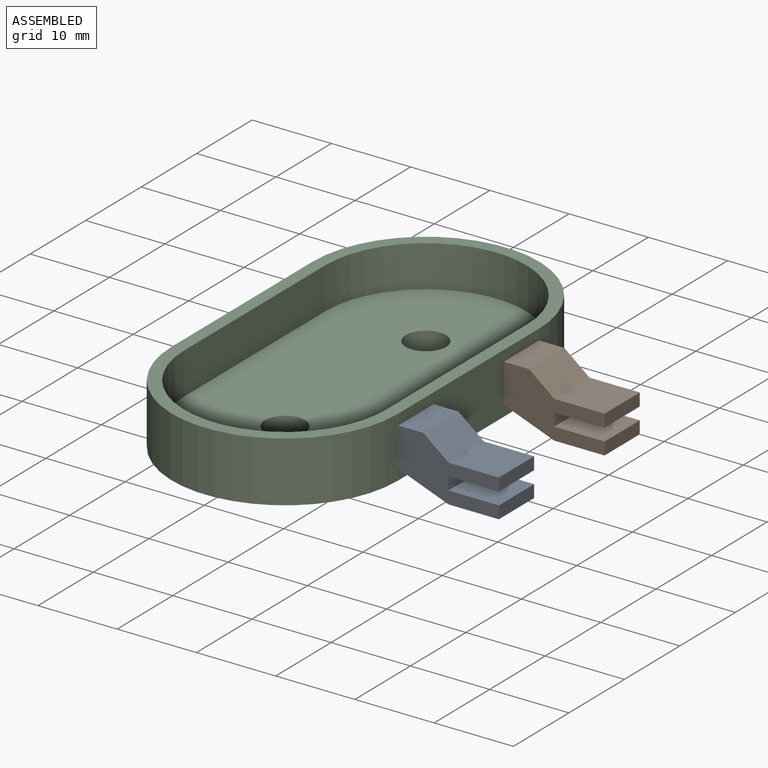
[diagram: assembled view]
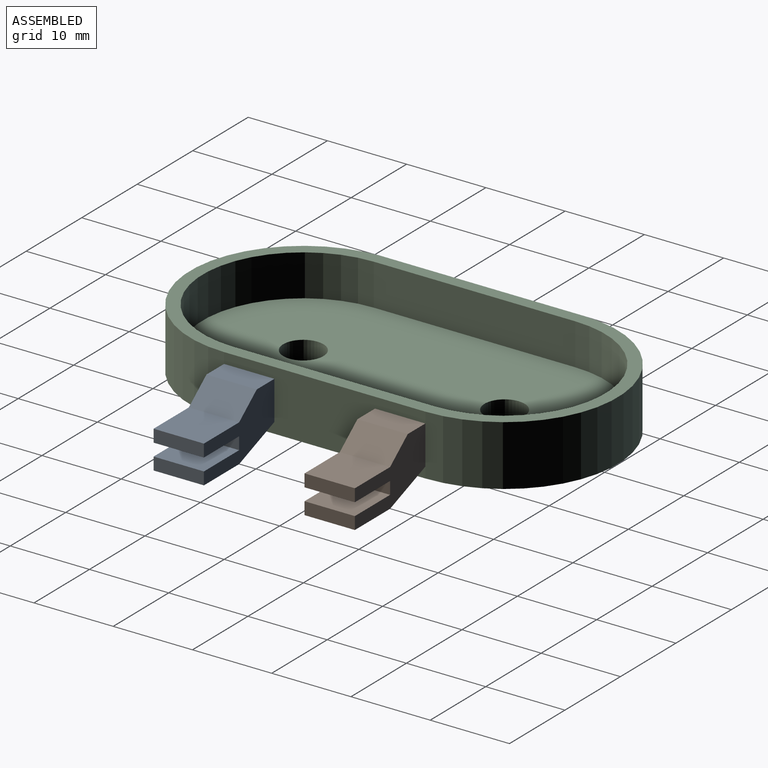
[diagram: assembled view, second angle]
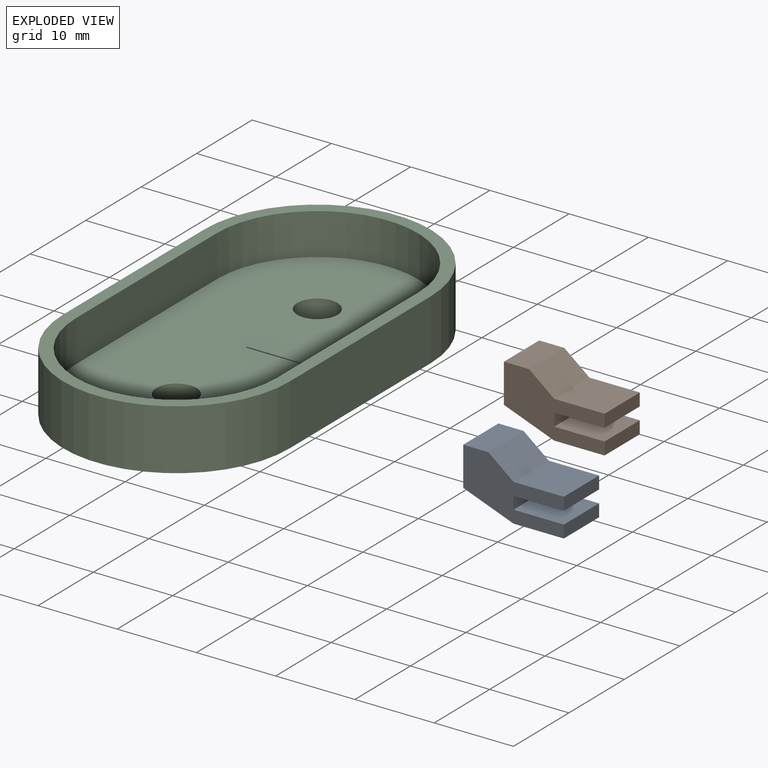
[diagram: exploded view]
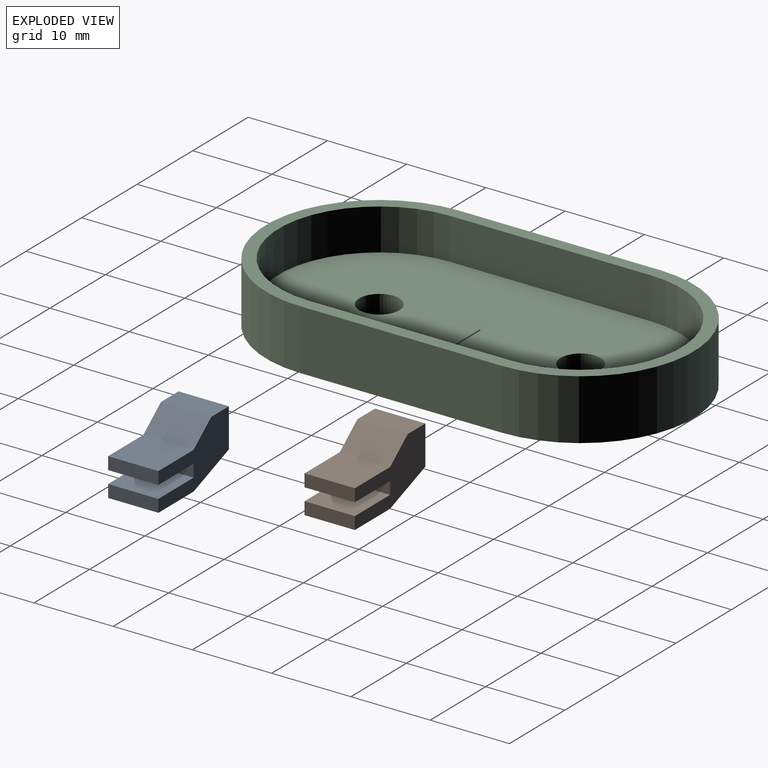
[diagram: exploded view, second angle]
ASSEMBLY  parts=3 mates=2
PART A: 13 faces, bbox 12.7x7.3x6.4 mm
  f0: plane 6.35x6.35mm, normal (0,1,0), area 40.3mm2, adj f1,f10,f11,f12
  f1: plane 6.35x1.59mm, normal (-1,0,0), area 10.1mm2, adj f0,f2,f11,f12
  f2: plane 6.35x6.35mm, normal (0,-1,0), area 40.3mm2, adj f1,f3,f11,f12
  f3: plane 6.35x6.35mm, normal (0.35,-0.94,0), area 43.1mm2, adj f2,f4,f11,f12
  f4: plane 6.35x4.92mm, normal (1,0,0), area 31.2mm2, adj f3,f5,f11,f12
  f5: plane 6.35x3.18mm, normal (0,1,0), area 20.2mm2, adj f4,f6,f11,f12
  f6: plane 6.35x3.18mm, normal (-0.62,0.78,0), area 25.8mm2, adj f5,f7,f11,f12
  f7: plane 6.35x6.35mm, normal (0,1,0), area 40.3mm2, adj f6,f8,f11,f12
  f8: plane 6.35x1.59mm, normal (-1,0,0), area 10.1mm2, adj f7,f9,f11,f12
  f9: plane 6.35x6.35mm, normal (0,-1,0), area 40.3mm2, adj f8,f10,f11,f12
  f10: plane 6.35x1.59mm, normal (-1,0,0), area 10.1mm2, adj f0,f9,f11,f12
  f11: plane 12.7x7.3mm, normal (0,0,1), area 54.9mm2, adj f0,f1,f2,f3,f4,f5,f6,f7
  f12: plane 12.7x7.3mm, normal (0,0,-1), area 54.9mm2, adj f0,f1,f2,f3,f4,f5,f6,f7
PART B: same geometry as A
PART C: 13 faces, bbox 28.6x54x7.6 mm
  f0: cylinder r=2.54mm len=5.08mm, axis (0,0,-1), area 38mm2, adj f2,f3
  f1: cylinder r=2.54mm len=5.08mm, axis (0,0,-1), area 38mm2, adj f2,f3
  f2: plane 50.8x25.4mm, normal (0,0,1), area 1111.3mm2, adj f0,f1,f4,f5,f6,f7
  f3: plane 53.98x28.58mm, normal (0,0,-1), area 1326.6mm2, adj f0,f1,f8,f9,f10,f11
  f4: plane 25.4x5.24mm, normal (-1,0,0), area 133.1mm2, adj f2,f6,f7,f12
  f5: plane 25.4x5.24mm, normal (1,0,0), area 133.1mm2, adj f2,f6,f7,f12
  f6: cylinder r=12.7mm len=25.4mm, axis (0,0,-1), area 209mm2, adj f2,f4,f5,f12
  f7: cylinder r=12.7mm len=25.4mm, axis (0,0,-1), area 209mm2, adj f2,f4,f5,f12
  f8: plane 25.4x7.62mm, normal (-1,0,0), area 193.5mm2, adj f3,f9,f11,f12
  f9: cylinder r=14.29mm len=28.58mm, axis (0,0,-1), area 342mm2, adj f3,f8,f10,f12
  f10: plane 25.4x7.62mm, normal (1,0,0), area 193.5mm2, adj f3,f9,f11,f12
  f11: cylinder r=14.29mm len=28.58mm, axis (0,0,-1), area 342mm2, adj f3,f8,f10,f12
  f12: plane 53.98x28.58mm, normal (0,0,1), area 215.2mm2, adj f4,f5,f6,f7,f8,f9,f10,f11
PLACE A rot(axis=(0,0.71,0.71),180deg) t=(58.18,2.82,4.43)mm
PLACE B rot(axis=(0,0.71,0.71),180deg) t=(58.18,21.87,4.43)mm
PLACE C t=(18.5,2.82,5.46)mm
MATE fastened A.f4 <-> C.f10  axis (-1,0,0) through (45.48,2.82,9.27)mm
MATE fastened B.f4 <-> C.f10  axis (-1,0,0) through (45.48,28.22,9.27)mm
